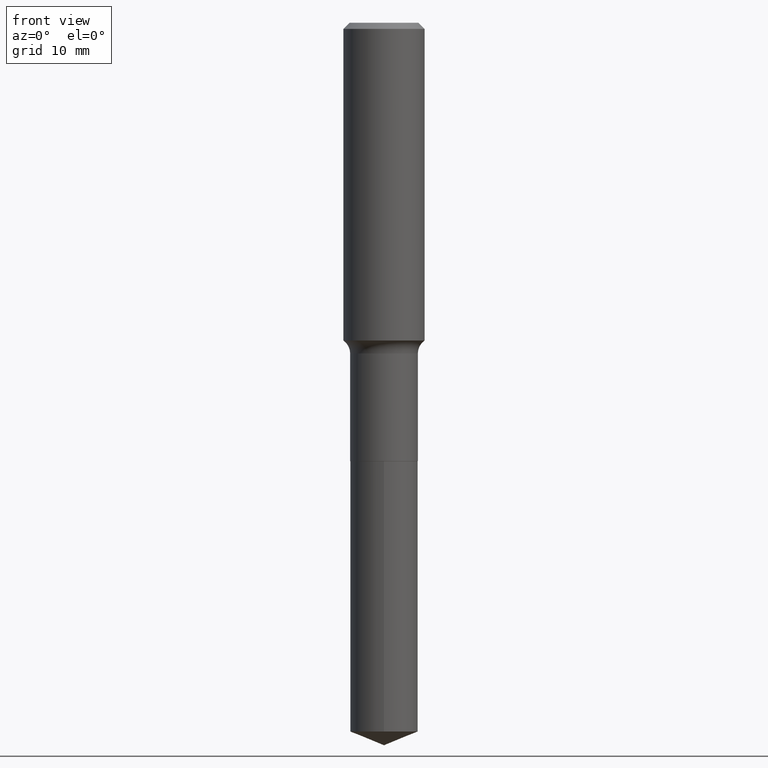
[diagram: clean part render]
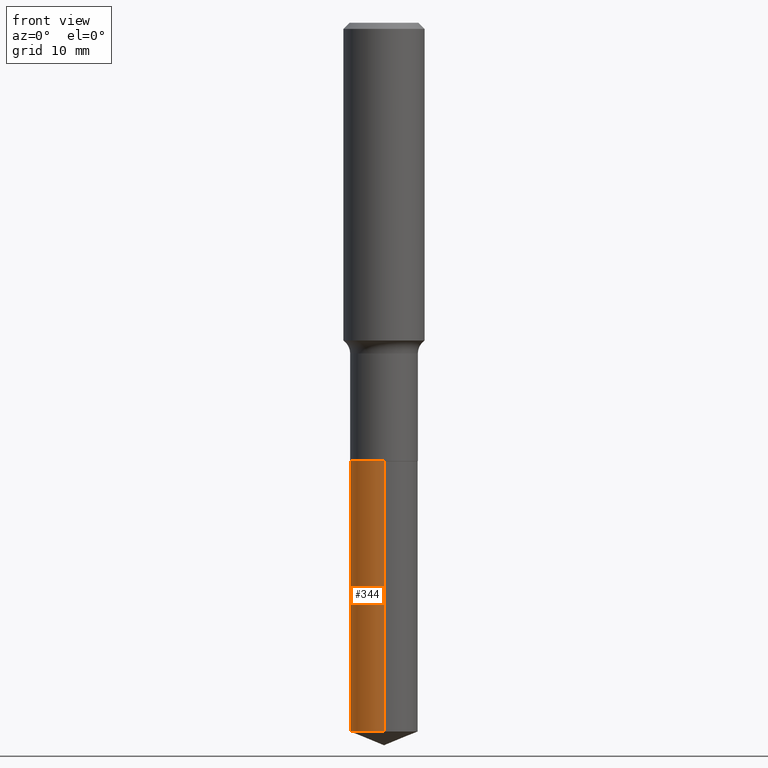
[diagram: same view with one face highlighted and labeled with its STEP entity id]
A machine part, front view. The second image highlights one B-rep face of the part: STEP entity #344.
In plain terms, the highlighted cylindrical surface (edge-blend (fillet) strip) has radius 4.1669 mm, axis along (-0, 0, 1).
Its self-contained STEP definition (entity closure, byte-faithful):
#3 = CARTESIAN_POINT ( 'NONE',  ( 1.165645358014496035E-15, 0.1640499999999925906, -2.125900000000000567 ) ) ;
#10 = CARTESIAN_POINT ( 'NONE',  ( 5.198822135068982087E-29, -7.422540178246643119E-15, -2.125899999999999679 ) ) ;
#12 = AXIS2_PLACEMENT_3D ( 'NONE', #353, #159, #55 ) ;
#13 = LINE ( 'NONE', #79, #163 ) ;
#30 = ORIENTED_EDGE ( 'NONE', *, *, #287, .T. ) ;
#34 = AXIS2_PLACEMENT_3D ( 'NONE', #435, #147, #179 ) ;
#52 = FACE_OUTER_BOUND ( 'NONE', #256, .T. ) ;
#55 = DIRECTION ( 'NONE',  ( -6.982962677686265133E-15, -1.000000000000000000, 3.330506545156066257E-15 ) ) ;
#62 = VECTOR ( 'NONE', #129, 39.37007874015748143 ) ;
#79 = CARTESIAN_POINT ( 'NONE',  ( -1.145555027274379992E-15, -0.1640500000000074121, -2.125899999999999235 ) ) ;
#84 = ORIENTED_EDGE ( 'NONE', *, *, #96, .F. ) ;
#85 = LINE ( 'NONE', #3, #62 ) ;
#90 = VERTEX_POINT ( 'NONE', #171 ) ;
#96 = EDGE_CURVE ( 'NONE', #90, #138, #191, .T. ) ;
#129 = DIRECTION ( 'NONE',  ( -2.445510554620705359E-29, 3.491421552707238452E-15, 1.000000000000000000 ) ) ;
#138 = VERTEX_POINT ( 'NONE', #214 ) ;
#147 = DIRECTION ( 'NONE',  ( -2.445510554620705079E-29, 3.491421552707238058E-15, 1.000000000000000000 ) ) ;
#159 = DIRECTION ( 'NONE',  ( -2.445510554620705079E-29, 3.491421552707238058E-15, 1.000000000000000000 ) ) ;
#163 = VECTOR ( 'NONE', #166, 39.37007874015748143 ) ;
#166 = DIRECTION ( 'NONE',  ( -2.445510554620705359E-29, 3.491421552707238452E-15, 1.000000000000000000 ) ) ;
#171 = CARTESIAN_POINT ( 'NONE',  ( 1.165645358014528181E-15, 0.1640499999999925906, -2.125900000000000567 ) ) ;
#179 = DIRECTION ( 'NONE',  ( -6.982962677686265133E-15, -1.000000000000000000, 3.330506545156066257E-15 ) ) ;
#191 = CIRCLE ( 'NONE', #34, 0.1640500000000000014 ) ;
#211 = ORIENTED_EDGE ( 'NONE', *, *, #386, .T. ) ;
#214 = CARTESIAN_POINT ( 'NONE',  ( -1.145555027274379992E-15, -0.1640500000000074121, -2.125899999999999235 ) ) ;
#246 = CARTESIAN_POINT ( 'NONE',  ( -1.145555027274347452E-15, -0.1640500000000119363, -3.437619497651742240 ) ) ;
#256 = EDGE_LOOP ( 'NONE', ( #370, #30, #211, #84 ) ) ;
#280 = EDGE_CURVE ( 'NONE', #384, #90, #85, .T. ) ;
#287 = EDGE_CURVE ( 'NONE', #384, #342, #376, .T. ) ;
#304 = DIRECTION ( 'NONE',  ( -2.445510554620705079E-29, 3.491421552707238058E-15, 1.000000000000000000 ) ) ;
#342 = VERTEX_POINT ( 'NONE', #246 ) ;
#344 = ADVANCED_FACE ( 'NONE', ( #52 ), #345, .T. ) ;
#345 = CYLINDRICAL_SURFACE ( 'NONE', #478, 0.1640500000000000014 ) ;
#353 = CARTESIAN_POINT ( 'NONE',  ( 8.406646011278087519E-29, -1.200230590345424907E-14, -3.437619497651742684 ) ) ;
#370 = ORIENTED_EDGE ( 'NONE', *, *, #280, .F. ) ;
#376 = CIRCLE ( 'NONE', #12, 0.1640500000000000014 ) ;
#384 = VERTEX_POINT ( 'NONE', #385 ) ;
#385 = CARTESIAN_POINT ( 'NONE',  ( 1.165645358014527787E-15, 0.1640499999999879277, -3.437619497651743128 ) ) ;
#386 = EDGE_CURVE ( 'NONE', #342, #138, #13, .T. ) ;
#419 = DIRECTION ( 'NONE',  ( -6.982962677686265133E-15, -1.000000000000000000, 3.330506545156066257E-15 ) ) ;
#435 = CARTESIAN_POINT ( 'NONE',  ( 5.198822135068982087E-29, -7.422540178246643119E-15, -2.125899999999999679 ) ) ;
#478 = AXIS2_PLACEMENT_3D ( 'NONE', #10, #304, #419 ) ;